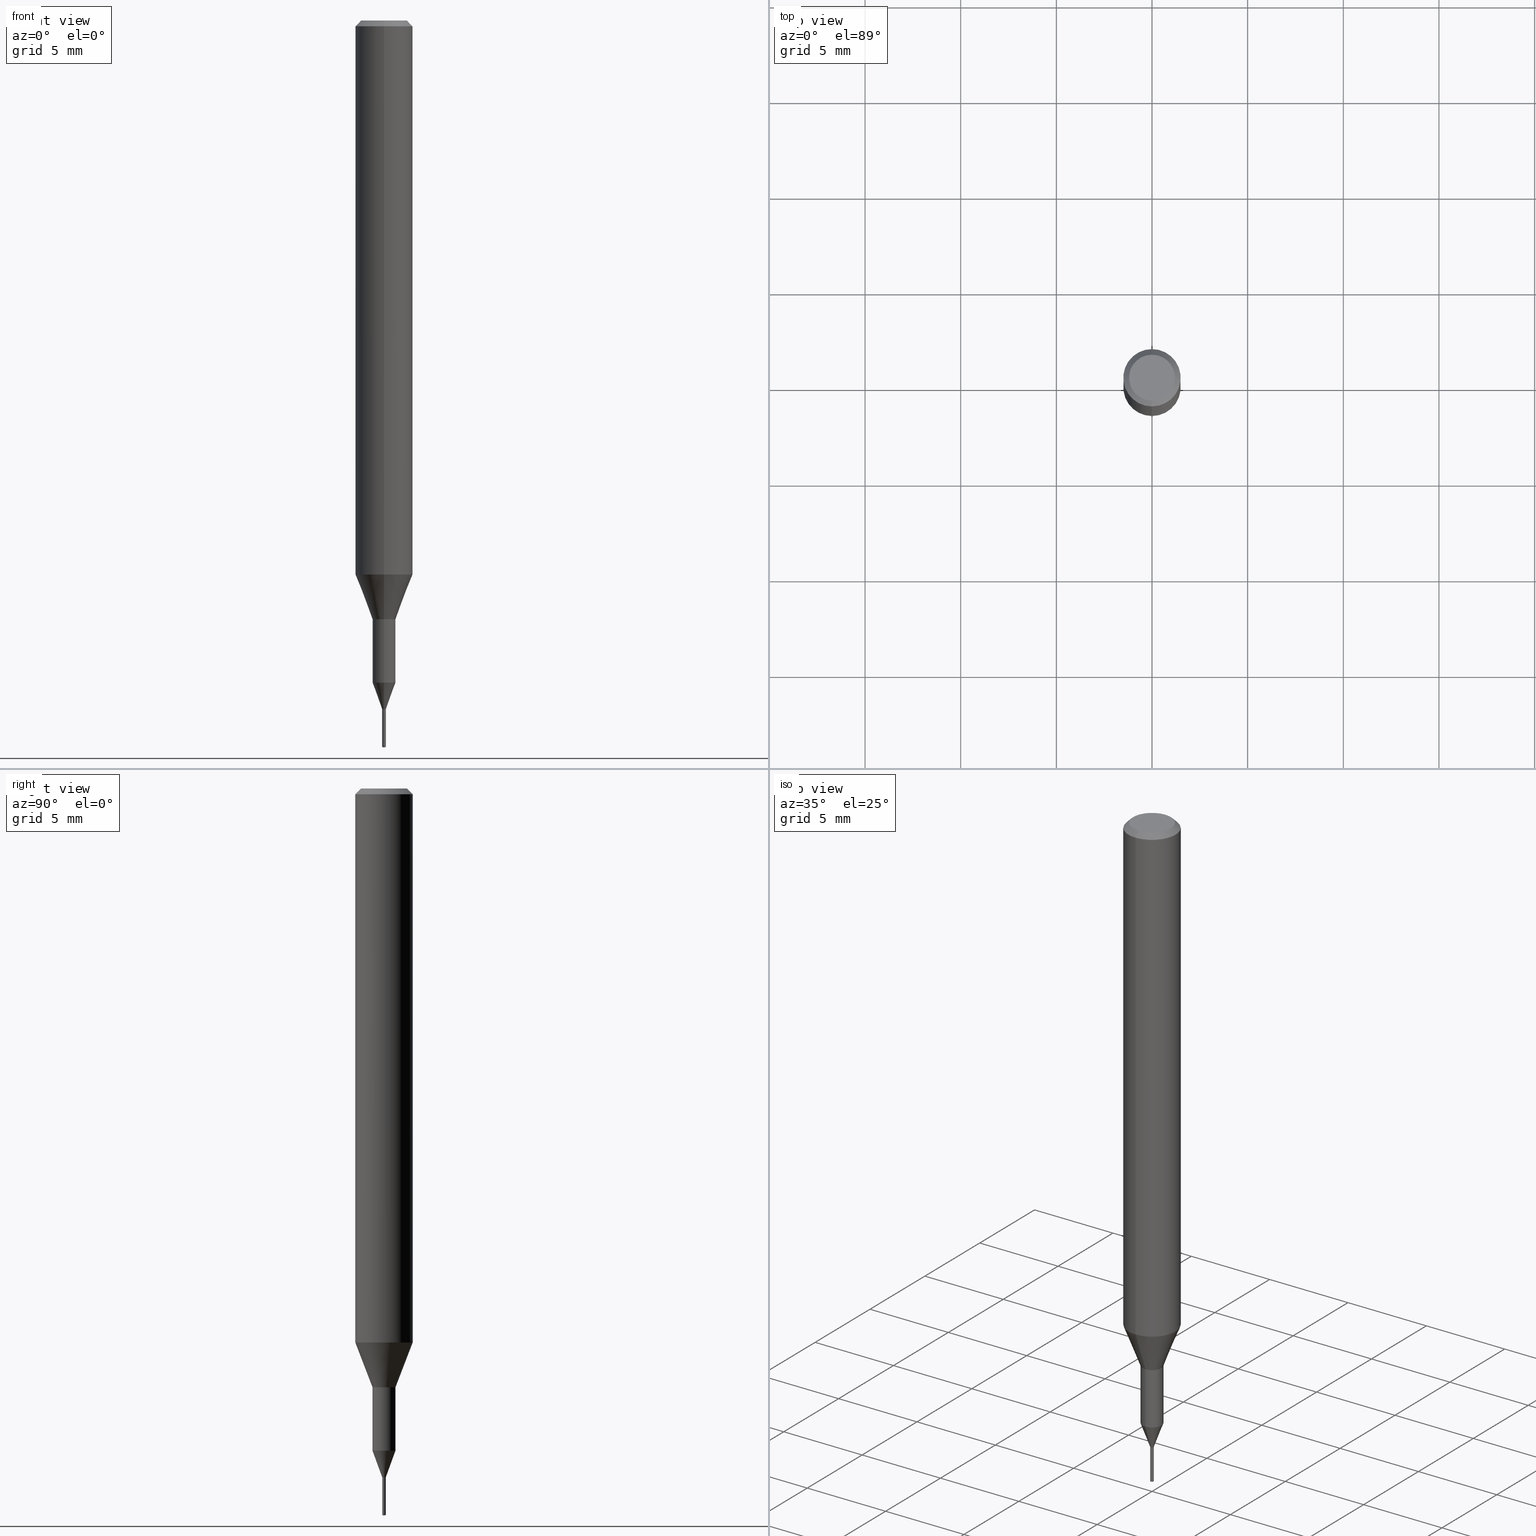
[diagram: canonical four-view strip — front | top / right | iso, engineering-drawing reading convention]
A machine part, canonical four-view strip (front | top / right | iso — engineering-drawing reading convention). The complete STEP part file that produces these views, byte-faithful:
ISO-10303-21;
HEADER;
FILE_DESCRIPTION(('no description'),'unknown implementation level');
FILE_NAME('C-UMD2019-020-Huellk.stp','  ',('CIMSOURCE GmbH'),('CADClick - KiM GmbH - www.kimweb.de'),'unknown preprocess','ACIS','unknown authorization');
FILE_SCHEMA(('automotive_design'));
ENDSEC;
DATA;
#1=MECHANICAL_DESIGN_GEOMETRIC_PRESENTATION_REPRESENTATION(' ',(#14,#15,#16,#17,#18,#19,#20,#21,#22,#23,#24,#25,#26,#27,#28,#29,#30,#31,#32,#33,#34,#35,#36,#37,#38,#39,#40,#41,#42,#43,#44,#45,#46,#47,#48,#49,#50,#51,#52,#53,#54,#55,#56,#57,#58,#59,#60,#61,#62,#63,#64,#65,#66,#67,#68,#69,#70,#71,#72,#73,#74,#75,#76,#77,#78,#79,#80,#81,#82,#83,#84,#85,#86,#87,#88,#89,#90,#91,#92),#10);
#2=PRODUCT_DEFINITION_CONTEXT('',#93,'design');
#3=APPLICATION_PROTOCOL_DEFINITION('INTERNATIONAL STANDARD','automotive_design',1994,#93);
#4=PRODUCT_CATEGORY_RELATIONSHIP('NONE','NONE',#94,#95);
#5=SHAPE_DEFINITION_REPRESENTATION(#96,#97);
#6=PRODUCT_DEFINITION_CONTEXT('',#98,'design');
#7=APPLICATION_PROTOCOL_DEFINITION('INTERNATIONAL STANDARD','automotive_design',1994,#98);
#8=PRODUCT_CATEGORY_RELATIONSHIP('NONE','NONE',#99,#100);
#9=SHAPE_DEFINITION_REPRESENTATION(#101,#102);
#10= (GEOMETRIC_REPRESENTATION_CONTEXT(3)GLOBAL_UNCERTAINTY_ASSIGNED_CONTEXT((#105))GLOBAL_UNIT_ASSIGNED_CONTEXT((#107,#108,#109))REPRESENTATION_CONTEXT('NONE','WORKSPACE'));
#14=STYLED_ITEM('',(#111),#112);
#15=STYLED_ITEM('',(#113),#114);
#16=STYLED_ITEM('',(#115),#116);
#17=STYLED_ITEM('',(#117),#118);
#18=STYLED_ITEM('',(#119),#120);
#19=STYLED_ITEM('',(#121),#122);
#20=STYLED_ITEM('',(#123),#124);
#21=STYLED_ITEM('',(#125),#126);
#22=STYLED_ITEM('',(#127),#128);
#23=STYLED_ITEM('',(#129),#130);
#24=STYLED_ITEM('',(#131),#132);
#25=STYLED_ITEM('',(#133),#134);
#26=STYLED_ITEM('',(#135),#136);
#27=STYLED_ITEM('',(#137),#138);
#28=STYLED_ITEM('',(#139),#140);
#29=STYLED_ITEM('',(#141),#142);
#30=STYLED_ITEM('',(#143),#144);
#31=STYLED_ITEM('',(#145),#146);
#32=STYLED_ITEM('',(#147),#148);
#33=STYLED_ITEM('',(#149),#150);
#34=STYLED_ITEM('',(#151),#152);
#35=STYLED_ITEM('',(#153),#154);
#36=STYLED_ITEM('',(#155),#156);
#37=STYLED_ITEM('',(#157),#158);
#38=STYLED_ITEM('',(#159),#160);
#39=STYLED_ITEM('',(#161),#162);
#40=STYLED_ITEM('',(#163),#164);
#41=STYLED_ITEM('',(#165),#166);
#42=STYLED_ITEM('',(#167),#168);
#43=STYLED_ITEM('',(#169),#170);
#44=STYLED_ITEM('',(#171),#172);
#45=STYLED_ITEM('',(#173),#174);
#46=STYLED_ITEM('',(#175),#176);
#47=STYLED_ITEM('',(#177),#178);
#48=STYLED_ITEM('',(#179),#180);
#49=STYLED_ITEM('',(#181),#182);
#50=STYLED_ITEM('',(#183),#184);
#51=STYLED_ITEM('',(#185),#186);
#52=STYLED_ITEM('',(#187),#188);
#53=STYLED_ITEM('',(#189),#190);
#54=STYLED_ITEM('',(#191),#192);
#55=STYLED_ITEM('',(#193),#194);
#56=STYLED_ITEM('',(#195),#196);
#57=STYLED_ITEM('',(#197),#198);
#58=STYLED_ITEM('',(#199),#200);
#59=STYLED_ITEM('',(#201),#202);
#60=STYLED_ITEM('',(#203),#204);
#61=STYLED_ITEM('',(#205),#206);
#62=STYLED_ITEM('',(#207),#208);
#63=STYLED_ITEM('',(#209),#210);
#64=STYLED_ITEM('',(#211),#212);
#65=STYLED_ITEM('',(#213),#214);
#66=STYLED_ITEM('',(#215),#216);
#67=STYLED_ITEM('',(#217),#218);
#68=STYLED_ITEM('',(#219),#220);
#69=STYLED_ITEM('',(#221),#222);
#70=STYLED_ITEM('',(#223),#224);
#71=STYLED_ITEM('',(#225),#226);
#72=STYLED_ITEM('',(#227),#228);
#73=STYLED_ITEM('',(#229),#230);
#74=STYLED_ITEM('',(#231),#232);
#75=STYLED_ITEM('',(#233),#234);
#76=STYLED_ITEM('',(#235),#236);
#77=STYLED_ITEM('',(#237),#238);
#78=STYLED_ITEM('',(#239),#240);
#79=STYLED_ITEM('',(#241),#242);
#80=STYLED_ITEM('',(#243),#244);
#81=STYLED_ITEM('',(#245),#246);
#82=STYLED_ITEM('',(#247),#248);
#83=STYLED_ITEM('',(#249),#250);
#84=STYLED_ITEM('',(#251),#252);
#85=STYLED_ITEM('',(#253),#254);
#86=STYLED_ITEM('',(#255),#256);
#87=STYLED_ITEM('',(#257),#258);
#88=STYLED_ITEM('',(#259),#260);
#89=STYLED_ITEM('',(#261),#262);
#90=STYLED_ITEM('',(#263),#264);
#91=STYLED_ITEM('',(#265),#266);
#92=STYLED_ITEM('',(#267),#268);
#93=APPLICATION_CONTEXT(' ');
#94=PRODUCT_CATEGORY('part','NONE');
#95=PRODUCT_RELATED_PRODUCT_CATEGORY('detail',' ',(#269));
#96=PRODUCT_DEFINITION_SHAPE('NONE','NONE',#270);
#97=ADVANCED_BREP_SHAPE_REPRESENTATION('1',(#182,#271),#10);
#98=APPLICATION_CONTEXT(' ');
#99=PRODUCT_CATEGORY('part','NONE');
#100=PRODUCT_RELATED_PRODUCT_CATEGORY('detail',' ',(#272));
#101=PRODUCT_DEFINITION_SHAPE('NONE','NONE',#273);
#102=ADVANCED_BREP_SHAPE_REPRESENTATION('2',(#194,#274),#10);
#105=UNCERTAINTY_MEASURE_WITH_UNIT(LENGTH_MEASURE(1.0E-006),#107,'','');
#107= (CONVERSION_BASED_UNIT('MILLIMETRE',#277)LENGTH_UNIT()NAMED_UNIT(#280));
#108= (NAMED_UNIT(#282)PLANE_ANGLE_UNIT()SI_UNIT($,.RADIAN.));
#109= (NAMED_UNIT(#282)SOLID_ANGLE_UNIT()SI_UNIT($,.STERADIAN.));
#111=PRESENTATION_STYLE_ASSIGNMENT((#288));
#112=EDGE_CURVE('',#198,#206,#289,.T.);
#113=PRESENTATION_STYLE_ASSIGNMENT((#290));
#114=EDGE_CURVE('',#156,#158,#291,.T.);
#115=PRESENTATION_STYLE_ASSIGNMENT((#292));
#116=EDGE_CURVE('',#264,#122,#293,.T.);
#117=PRESENTATION_STYLE_ASSIGNMENT((#294));
#118=VERTEX_POINT('',#295);
#119=PRESENTATION_STYLE_ASSIGNMENT((#296));
#120=EDGE_CURVE('',#256,#178,#297,.T.);
#121=PRESENTATION_STYLE_ASSIGNMENT((#298));
#122=VERTEX_POINT('',#299);
#123=PRESENTATION_STYLE_ASSIGNMENT((#300));
#124=EDGE_CURVE('',#156,#126,#301,.T.);
#125=PRESENTATION_STYLE_ASSIGNMENT((#302));
#126=VERTEX_POINT('',#303);
#127=PRESENTATION_STYLE_ASSIGNMENT((#304));
#128=EDGE_CURVE('',#148,#136,#305,.T.);
#129=PRESENTATION_STYLE_ASSIGNMENT((#306));
#130=VERTEX_POINT('',#307);
#131=PRESENTATION_STYLE_ASSIGNMENT((#308));
#132=EDGE_CURVE('',#142,#130,#309,.T.);
#133=PRESENTATION_STYLE_ASSIGNMENT((#310));
#134=ADVANCED_FACE('',(#311,#312),#313,.T.);
#135=PRESENTATION_STYLE_ASSIGNMENT((#314));
#136=VERTEX_POINT('',#315);
#137=PRESENTATION_STYLE_ASSIGNMENT((#316));
#138=EDGE_CURVE('',#264,#118,#317,.T.);
#139=PRESENTATION_STYLE_ASSIGNMENT((#318));
#140=ADVANCED_FACE('',(#319),#320,.T.);
#141=PRESENTATION_STYLE_ASSIGNMENT((#321));
#142=VERTEX_POINT('',#322);
#143=PRESENTATION_STYLE_ASSIGNMENT((#323));
#144=EDGE_CURVE('',#178,#198,#324,.T.);
#145=PRESENTATION_STYLE_ASSIGNMENT((#325));
#146=ADVANCED_FACE('',(#326),#327,.T.);
#147=PRESENTATION_STYLE_ASSIGNMENT((#328));
#148=VERTEX_POINT('',#329);
#149=PRESENTATION_STYLE_ASSIGNMENT((#330));
#150=ADVANCED_FACE('',(#331),#332,.T.);
#151=PRESENTATION_STYLE_ASSIGNMENT((#333));
#152=EDGE_CURVE('',#238,#122,#334,.T.);
#153=PRESENTATION_STYLE_ASSIGNMENT((#335));
#154=VERTEX_POINT('',#336);
#155=PRESENTATION_STYLE_ASSIGNMENT((#337));
#156=VERTEX_POINT('',#338);
#157=PRESENTATION_STYLE_ASSIGNMENT((#339));
#158=VERTEX_POINT('',#340);
#159=PRESENTATION_STYLE_ASSIGNMENT((#341));
#160=EDGE_CURVE('',#122,#238,#342,.T.);
#161=PRESENTATION_STYLE_ASSIGNMENT((#343));
#162=ADVANCED_FACE('',(#344),#345,.T.);
#163=PRESENTATION_STYLE_ASSIGNMENT((#346));
#164=ADVANCED_FACE('',(#347),#348,.T.);
#165=PRESENTATION_STYLE_ASSIGNMENT((#349));
#166=EDGE_CURVE('',#260,#214,#350,.T.);
#167=PRESENTATION_STYLE_ASSIGNMENT((#351));
#168=ADVANCED_FACE('',(#352),#353,.T.);
#169=PRESENTATION_STYLE_ASSIGNMENT((#354));
#170=EDGE_CURVE('',#178,#256,#355,.T.);
#171=PRESENTATION_STYLE_ASSIGNMENT((#356));
#172=EDGE_CURVE('',#224,#142,#357,.T.);
#173=PRESENTATION_STYLE_ASSIGNMENT((#358));
#174=EDGE_CURVE('',#154,#158,#359,.T.);
#175=PRESENTATION_STYLE_ASSIGNMENT((#360));
#176=ADVANCED_FACE('',(#361),#362,.T.);
#177=PRESENTATION_STYLE_ASSIGNMENT((#363));
#178=VERTEX_POINT('',#364);
#179=PRESENTATION_STYLE_ASSIGNMENT((#365));
#180=EDGE_CURVE('',#130,#224,#366,.T.);
#181=PRESENTATION_STYLE_ASSIGNMENT((#367));
#182=MANIFOLD_SOLID_BREP('1',#368);
#183=PRESENTATION_STYLE_ASSIGNMENT((#369));
#184=EDGE_CURVE('',#136,#214,#370,.T.);
#185=PRESENTATION_STYLE_ASSIGNMENT((#371));
#186=ADVANCED_FACE('',(#372),#373,.T.);
#187=PRESENTATION_STYLE_ASSIGNMENT((#374));
#188=EDGE_CURVE('',#214,#260,#375,.T.);
#189=PRESENTATION_STYLE_ASSIGNMENT((#376));
#190=ADVANCED_FACE('',(#377),#378,.T.);
#191=PRESENTATION_STYLE_ASSIGNMENT((#379));
#192=ADVANCED_FACE('',(#380),#381,.T.);
#193=PRESENTATION_STYLE_ASSIGNMENT((#382));
#194=MANIFOLD_SOLID_BREP('2',#383);
#195=PRESENTATION_STYLE_ASSIGNMENT((#384));
#196=EDGE_CURVE('',#130,#178,#385,.T.);
#197=PRESENTATION_STYLE_ASSIGNMENT((#386));
#198=VERTEX_POINT('',#387);
#199=PRESENTATION_STYLE_ASSIGNMENT((#388));
#200=EDGE_CURVE('',#230,#154,#389,.T.);
#201=PRESENTATION_STYLE_ASSIGNMENT((#390));
#202=EDGE_CURVE('',#154,#126,#391,.T.);
#203=PRESENTATION_STYLE_ASSIGNMENT((#392));
#204=EDGE_CURVE('',#214,#238,#393,.T.);
#205=PRESENTATION_STYLE_ASSIGNMENT((#394));
#206=VERTEX_POINT('',#395);
#207=PRESENTATION_STYLE_ASSIGNMENT((#396));
#208=EDGE_CURVE('',#230,#236,#397,.T.);
#209=PRESENTATION_STYLE_ASSIGNMENT((#398));
#210=EDGE_CURVE('',#260,#148,#399,.T.);
#211=PRESENTATION_STYLE_ASSIGNMENT((#400));
#212=ADVANCED_FACE('',(#401),#402,.T.);
#213=PRESENTATION_STYLE_ASSIGNMENT((#403));
#214=VERTEX_POINT('',#404);
#215=PRESENTATION_STYLE_ASSIGNMENT((#405));
#216=EDGE_CURVE('',#122,#260,#406,.T.);
#217=PRESENTATION_STYLE_ASSIGNMENT((#407));
#218=EDGE_CURVE('',#236,#230,#408,.T.);
#219=PRESENTATION_STYLE_ASSIGNMENT((#409));
#220=EDGE_CURVE('',#206,#256,#410,.T.);
#221=PRESENTATION_STYLE_ASSIGNMENT((#411));
#222=ADVANCED_FACE('',(#412),#413,.T.);
#223=PRESENTATION_STYLE_ASSIGNMENT((#414));
#224=VERTEX_POINT('',#415);
#225=PRESENTATION_STYLE_ASSIGNMENT((#416));
#226=EDGE_CURVE('',#238,#118,#417,.T.);
#227=PRESENTATION_STYLE_ASSIGNMENT((#418));
#228=EDGE_CURVE('',#256,#224,#419,.T.);
#229=PRESENTATION_STYLE_ASSIGNMENT((#420));
#230=VERTEX_POINT('',#421);
#231=PRESENTATION_STYLE_ASSIGNMENT((#422));
#232=ADVANCED_FACE('',(#423),#424,.T.);
#233=PRESENTATION_STYLE_ASSIGNMENT((#425));
#234=ADVANCED_FACE('',(#426),#427,.T.);
#235=PRESENTATION_STYLE_ASSIGNMENT((#428));
#236=VERTEX_POINT('',#429);
#237=PRESENTATION_STYLE_ASSIGNMENT((#430));
#238=VERTEX_POINT('',#431);
#239=PRESENTATION_STYLE_ASSIGNMENT((#432));
#240=EDGE_CURVE('',#158,#154,#433,.T.);
#241=PRESENTATION_STYLE_ASSIGNMENT((#434));
#242=ADVANCED_FACE('',(#435),#436,.T.);
#243=PRESENTATION_STYLE_ASSIGNMENT((#437));
#244=ADVANCED_FACE('',(#438),#439,.T.);
#245=PRESENTATION_STYLE_ASSIGNMENT((#440));
#246=ADVANCED_FACE('',(#441),#442,.T.);
#247=PRESENTATION_STYLE_ASSIGNMENT((#443));
#248=ADVANCED_FACE('',(#444),#445,.T.);
#249=PRESENTATION_STYLE_ASSIGNMENT((#446));
#250=EDGE_CURVE('',#224,#130,#447,.T.);
#251=PRESENTATION_STYLE_ASSIGNMENT((#448));
#252=EDGE_CURVE('',#206,#198,#449,.T.);
#253=PRESENTATION_STYLE_ASSIGNMENT((#450));
#254=EDGE_CURVE('',#126,#156,#451,.T.);
#255=PRESENTATION_STYLE_ASSIGNMENT((#452));
#256=VERTEX_POINT('',#453);
#257=PRESENTATION_STYLE_ASSIGNMENT((#454));
#258=ADVANCED_FACE('',(#455),#456,.T.);
#259=PRESENTATION_STYLE_ASSIGNMENT((#457));
#260=VERTEX_POINT('',#458);
#261=PRESENTATION_STYLE_ASSIGNMENT((#459));
#262=EDGE_CURVE('',#158,#236,#460,.T.);
#263=PRESENTATION_STYLE_ASSIGNMENT((#461));
#264=VERTEX_POINT('',#462);
#265=PRESENTATION_STYLE_ASSIGNMENT((#463));
#266=EDGE_CURVE('',#136,#148,#464,.T.);
#267=PRESENTATION_STYLE_ASSIGNMENT((#465));
#268=EDGE_CURVE('',#118,#264,#466,.T.);
#269=PRODUCT('1','1','PART-1-DESC',(#467));
#270=PRODUCT_DEFINITION('NONE','NONE',#468,#2);
#271=AXIS2_PLACEMENT_3D('',#469,#470,#471);
#272=PRODUCT('2','2','PART-2-DESC',(#472));
#273=PRODUCT_DEFINITION('NONE','NONE',#473,#6);
#274=AXIS2_PLACEMENT_3D('',#474,#475,#476);
#277=LENGTH_MEASURE_WITH_UNIT(LENGTH_MEASURE(1.0),#477);
#280=DIMENSIONAL_EXPONENTS(1.0,0.0,0.0,0.0,0.0,0.0,0.0);
#282=DIMENSIONAL_EXPONENTS(0.0,0.0,0.0,0.0,0.0,0.0,0.0);
#288=CURVE_STYLE('',#478,POSITIVE_LENGTH_MEASURE(1.0E-006),#479);
#289=CIRCLE('',#480,0.096036409516943);
#290=CURVE_STYLE('',#481,POSITIVE_LENGTH_MEASURE(1.0E-006),#482);
#291=LINE('',#483,#484);
#292=CURVE_STYLE('',#485,POSITIVE_LENGTH_MEASURE(1.0E-006),#486);
#293=LINE('',#487,#488);
#294=POINT_STYLE(' ',#489,POSITIVE_LENGTH_MEASURE(1.0E-006),#490);
#295=CARTESIAN_POINT('',(1.46952762458685E-016,-1.2,0.0));
#296=CURVE_STYLE('',#491,POSITIVE_LENGTH_MEASURE(1.0E-006),#492);
#297=CIRCLE('',#493,0.095);
#298=POINT_STYLE(' ',#494,POSITIVE_LENGTH_MEASURE(1.0E-006),#495);
#299=CARTESIAN_POINT('',(0.0,1.5,-0.300000000000001));
#300=CURVE_STYLE('',#496,POSITIVE_LENGTH_MEASURE(1.0E-006),#497);
#301=CIRCLE('',#498,0.0950364059120403);
#302=POINT_STYLE(' ',#499,POSITIVE_LENGTH_MEASURE(1.0E-006),#500);
#303=CARTESIAN_POINT('',(0.0,0.0950364059120403,-35.9999));
#304=CURVE_STYLE('',#501,POSITIVE_LENGTH_MEASURE(1.0E-006),#502);
#305=CIRCLE('',#503,0.6);
#306=POINT_STYLE(' ',#504,POSITIVE_LENGTH_MEASURE(1.0E-006),#505);
#307=CARTESIAN_POINT('',(0.095,1.16337603613126E-017,-37.97454483));
#308=CURVE_STYLE('',#506,POSITIVE_LENGTH_MEASURE(1.0E-006),#507);
#309=LINE('',#508,#509);
#310=SURFACE_STYLE_USAGE(.BOTH.,#510);
#311=FACE_BOUND('',#511,.T.);
#312=FACE_OUTER_BOUND('',#512,.T.);
#313=PLANE('',#513);
#314=POINT_STYLE(' ',#514,POSITIVE_LENGTH_MEASURE(1.0E-006),#515);
#315=CARTESIAN_POINT('',(7.34763812293426E-017,-0.6,-31.3));
#316=CURVE_STYLE('',#516,POSITIVE_LENGTH_MEASURE(1.0E-006),#517);
#317=CIRCLE('',#518,1.2);
#318=SURFACE_STYLE_USAGE(.BOTH.,#519);
#319=FACE_OUTER_BOUND('',#520,.T.);
#320=CONICAL_SURFACE('',#521,0.0475,1.30899697121863);
#321=POINT_STYLE(' ',#522,POSITIVE_LENGTH_MEASURE(1.0E-006),#523);
#322=CARTESIAN_POINT('',(0.0,0.0,-38.0));
#323=CURVE_STYLE('',#524,POSITIVE_LENGTH_MEASURE(1.0E-006),#525);
#324=LINE('',#526,#527);
#325=SURFACE_STYLE_USAGE(.BOTH.,#528);
#326=FACE_OUTER_BOUND('',#529,.T.);
#327=CYLINDRICAL_SURFACE('',#530,0.095);
#328=POINT_STYLE(' ',#531,POSITIVE_LENGTH_MEASURE(1.0E-006),#532);
#329=CARTESIAN_POINT('',(0.0,0.6,-31.3));
#330=SURFACE_STYLE_USAGE(.BOTH.,#533);
#331=FACE_OUTER_BOUND('',#534,.T.);
#332=CYLINDRICAL_SURFACE('',#535,0.59995);
#333=CURVE_STYLE('',#536,POSITIVE_LENGTH_MEASURE(1.0E-006),#537);
#334=CIRCLE('',#538,1.5);
#335=POINT_STYLE(' ',#539,POSITIVE_LENGTH_MEASURE(1.0E-006),#540);
#336=CARTESIAN_POINT('',(0.0,0.59995,-34.613));
#337=POINT_STYLE(' ',#541,POSITIVE_LENGTH_MEASURE(1.0E-006),#542);
#338=CARTESIAN_POINT('',(1.16382186524327E-017,-0.0950364059120403,-35.9999));
#339=POINT_STYLE(' ',#543,POSITIVE_LENGTH_MEASURE(1.0E-006),#544);
#340=CARTESIAN_POINT('',(7.34702581975735E-017,-0.59995,-34.613));
#341=CURVE_STYLE('',#545,POSITIVE_LENGTH_MEASURE(1.0E-006),#546);
#342=CIRCLE('',#547,1.5);
#343=SURFACE_STYLE_USAGE(.BOTH.,#548);
#344=FACE_OUTER_BOUND('',#549,.T.);
#345=PLANE('',#550);
#346=SURFACE_STYLE_USAGE(.BOTH.,#551);
#347=FACE_OUTER_BOUND('',#552,.T.);
#348=CYLINDRICAL_SURFACE('',#553,1.5);
#349=CURVE_STYLE('',#554,POSITIVE_LENGTH_MEASURE(1.0E-006),#555);
#350=CIRCLE('',#556,1.5);
#351=SURFACE_STYLE_USAGE(.BOTH.,#557);
#352=FACE_OUTER_BOUND('',#558,.T.);
#353=CONICAL_SURFACE('',#559,1.05,0.366459241971866);
#354=CURVE_STYLE('',#560,POSITIVE_LENGTH_MEASURE(1.0E-006),#561);
#355=CIRCLE('',#562,0.095);
#356=CURVE_STYLE('',#563,POSITIVE_LENGTH_MEASURE(1.0E-006),#564);
#357=LINE('',#565,#566);
#358=CURVE_STYLE('',#567,POSITIVE_LENGTH_MEASURE(1.0E-006),#568);
#359=CIRCLE('',#569,0.59995);
#360=SURFACE_STYLE_USAGE(.BOTH.,#570);
#361=FACE_OUTER_BOUND('',#571,.T.);
#362=CONICAL_SURFACE('',#572,1.05,0.366459241971866);
#363=POINT_STYLE(' ',#573,POSITIVE_LENGTH_MEASURE(1.0E-006),#574);
#364=CARTESIAN_POINT('',(0.095,1.16337603613126E-017,-36.0));
#365=CURVE_STYLE('',#575,POSITIVE_LENGTH_MEASURE(1.0E-006),#576);
#366=CIRCLE('',#577,0.095);
#367=SURFACE_STYLE_USAGE(.BOTH.,#578);
#368=CLOSED_SHELL('',(#232,#212,#168,#234,#246,#162,#186,#164,#176,#134,#150,#222,#248));
#369=CURVE_STYLE('',#579,POSITIVE_LENGTH_MEASURE(1.0E-006),#580);
#370=LINE('',#581,#582);
#371=SURFACE_STYLE_USAGE(.BOTH.,#583);
#372=FACE_OUTER_BOUND('',#584,.T.);
#373=CONICAL_SURFACE('',#585,1.35,0.785398163397447);
#374=CURVE_STYLE('',#586,POSITIVE_LENGTH_MEASURE(1.0E-006),#587);
#375=CIRCLE('',#588,1.5);
#376=SURFACE_STYLE_USAGE(.BOTH.,#589);
#377=FACE_OUTER_BOUND('',#590,.T.);
#378=CONICAL_SURFACE('',#591,0.0955182047584715,1.47460713138279);
#379=SURFACE_STYLE_USAGE(.BOTH.,#592);
#380=FACE_OUTER_BOUND('',#593,.T.);
#381=CONICAL_SURFACE('',#594,0.0475,1.30899697121863);
#382=SURFACE_STYLE_USAGE(.BOTH.,#595);
#383=CLOSED_SHELL('',(#140,#242,#190,#258,#244,#146,#192));
#384=CURVE_STYLE('',#596,POSITIVE_LENGTH_MEASURE(1.0E-006),#597);
#385=LINE('',#598,#599);
#386=POINT_STYLE(' ',#600,POSITIVE_LENGTH_MEASURE(1.0E-006),#601);
#387=CARTESIAN_POINT('',(0.096036409516943,1.17606797292736E-017,-35.9999));
#388=CURVE_STYLE('',#602,POSITIVE_LENGTH_MEASURE(1.0E-006),#603);
#389=LINE('',#604,#605);
#390=CURVE_STYLE('',#606,POSITIVE_LENGTH_MEASURE(1.0E-006),#607);
#391=LINE('',#608,#609);
#392=CURVE_STYLE('',#610,POSITIVE_LENGTH_MEASURE(1.0E-006),#611);
#393=LINE('',#612,#613);
#394=POINT_STYLE(' ',#614,POSITIVE_LENGTH_MEASURE(1.0E-006),#615);
#395=CARTESIAN_POINT('',(-0.096036409516943,0.0,-35.9999));
#396=CURVE_STYLE('',#616,POSITIVE_LENGTH_MEASURE(1.0E-006),#617);
#397=CIRCLE('',#618,0.59995);
#398=CURVE_STYLE('',#619,POSITIVE_LENGTH_MEASURE(1.0E-006),#620);
#399=LINE('',#621,#622);
#400=SURFACE_STYLE_USAGE(.BOTH.,#623);
#401=FACE_OUTER_BOUND('',#624,.T.);
#402=CYLINDRICAL_SURFACE('',#625,0.59995);
#403=POINT_STYLE(' ',#626,POSITIVE_LENGTH_MEASURE(1.0E-006),#627);
#404=CARTESIAN_POINT('',(1.83690953073357E-016,-1.5,-28.955));
#405=CURVE_STYLE('',#628,POSITIVE_LENGTH_MEASURE(1.0E-006),#629);
#406=LINE('',#630,#631);
#407=CURVE_STYLE('',#632,POSITIVE_LENGTH_MEASURE(1.0E-006),#633);
#408=CIRCLE('',#634,0.59995);
#409=CURVE_STYLE('',#635,POSITIVE_LENGTH_MEASURE(1.0E-006),#636);
#410=LINE('',#637,#638);
#411=SURFACE_STYLE_USAGE(.BOTH.,#639);
#412=FACE_OUTER_BOUND('',#640,.T.);
#413=CONICAL_SURFACE('',#641,0.34749320295602,0.349144336591196);
#414=POINT_STYLE(' ',#642,POSITIVE_LENGTH_MEASURE(1.0E-006),#643);
#415=CARTESIAN_POINT('',(-0.095,0.0,-37.97454483));
#416=CURVE_STYLE('',#644,POSITIVE_LENGTH_MEASURE(1.0E-006),#645);
#417=LINE('',#646,#647);
#418=CURVE_STYLE('',#648,POSITIVE_LENGTH_MEASURE(1.0E-006),#649);
#419=LINE('',#650,#651);
#420=POINT_STYLE(' ',#652,POSITIVE_LENGTH_MEASURE(1.0E-006),#653);
#421=CARTESIAN_POINT('',(0.0,0.59995,-31.3));
#422=SURFACE_STYLE_USAGE(.BOTH.,#654);
#423=FACE_OUTER_BOUND('',#655,.T.);
#424=CONICAL_SURFACE('',#656,0.34749320295602,0.349144336591196);
#425=SURFACE_STYLE_USAGE(.BOTH.,#657);
#426=FACE_OUTER_BOUND('',#658,.T.);
#427=CYLINDRICAL_SURFACE('',#659,1.5);
#428=POINT_STYLE(' ',#660,POSITIVE_LENGTH_MEASURE(1.0E-006),#661);
#429=CARTESIAN_POINT('',(7.34702581975735E-017,-0.59995,-31.3));
#430=POINT_STYLE(' ',#662,POSITIVE_LENGTH_MEASURE(1.0E-006),#663);
#431=CARTESIAN_POINT('',(1.83690953073357E-016,-1.5,-0.300000000000001));
#432=CURVE_STYLE('',#664,POSITIVE_LENGTH_MEASURE(1.0E-006),#665);
#433=CIRCLE('',#666,0.59995);
#434=SURFACE_STYLE_USAGE(.BOTH.,#667);
#435=FACE_OUTER_BOUND('',#668,.T.);
#436=CYLINDRICAL_SURFACE('',#669,0.095);
#437=SURFACE_STYLE_USAGE(.BOTH.,#670);
#438=FACE_OUTER_BOUND('',#671,.T.);
#439=CONICAL_SURFACE('',#672,0.0955182047584715,1.47460713138279);
#440=SURFACE_STYLE_USAGE(.BOTH.,#673);
#441=FACE_OUTER_BOUND('',#674,.T.);
#442=CONICAL_SURFACE('',#675,1.35,0.785398163397447);
#443=SURFACE_STYLE_USAGE(.BOTH.,#676);
#444=FACE_OUTER_BOUND('',#677,.T.);
#445=PLANE('',#678);
#446=CURVE_STYLE('',#679,POSITIVE_LENGTH_MEASURE(1.0E-006),#680);
#447=CIRCLE('',#681,0.095);
#448=CURVE_STYLE('',#682,POSITIVE_LENGTH_MEASURE(1.0E-006),#683);
#449=CIRCLE('',#684,0.096036409516943);
#450=CURVE_STYLE('',#685,POSITIVE_LENGTH_MEASURE(1.0E-006),#686);
#451=CIRCLE('',#687,0.0950364059120403);
#452=POINT_STYLE(' ',#688,POSITIVE_LENGTH_MEASURE(1.0E-006),#689);
#453=CARTESIAN_POINT('',(-0.095,0.0,-36.0));
#454=SURFACE_STYLE_USAGE(.BOTH.,#690);
#455=FACE_OUTER_BOUND('',#691,.T.);
#456=PLANE('',#692);
#457=POINT_STYLE(' ',#693,POSITIVE_LENGTH_MEASURE(1.0E-006),#694);
#458=CARTESIAN_POINT('',(0.0,1.5,-28.955));
#459=CURVE_STYLE('',#695,POSITIVE_LENGTH_MEASURE(1.0E-006),#696);
#460=LINE('',#697,#698);
#461=POINT_STYLE(' ',#699,POSITIVE_LENGTH_MEASURE(1.0E-006),#700);
#462=CARTESIAN_POINT('',(0.0,1.2,0.0));
#463=CURVE_STYLE('',#701,POSITIVE_LENGTH_MEASURE(1.0E-006),#702);
#464=CIRCLE('',#703,0.6);
#465=CURVE_STYLE('',#704,POSITIVE_LENGTH_MEASURE(1.0E-006),#705);
#466=CIRCLE('',#706,1.2);
#467=PRODUCT_CONTEXT('',#93,'mechanical');
#468=PRODUCT_DEFINITION_FORMATION_WITH_SPECIFIED_SOURCE(' ','NONE',#269,.NOT_KNOWN.);
#469=CARTESIAN_POINT('',(0.0,0.0,0.0));
#470=DIRECTION('',(0.0,0.0,1.0));
#471=DIRECTION('',(1.0,0.0,0.0));
#472=PRODUCT_CONTEXT('',#98,'mechanical');
#473=PRODUCT_DEFINITION_FORMATION_WITH_SPECIFIED_SOURCE(' ','NONE',#272,.NOT_KNOWN.);
#474=CARTESIAN_POINT('',(0.0,0.0,0.0));
#475=DIRECTION('',(0.0,0.0,1.0));
#476=DIRECTION('',(1.0,0.0,0.0));
#477= (NAMED_UNIT(#280)LENGTH_UNIT()SI_UNIT(.MILLI.,.METRE.));
#478=DRAUGHTING_PRE_DEFINED_CURVE_FONT('continuous');
#479=COLOUR_RGB('',0.800000011920929,0.800000011920929,0.800000011920929);
#480=AXIS2_PLACEMENT_3D('',#708,#709,#710);
#481=DRAUGHTING_PRE_DEFINED_CURVE_FONT('continuous');
#482=COLOUR_RGB('',0.498039215803146,0.498039215803146,0.498039215803146);
#483=CARTESIAN_POINT('',(4.25542384250031E-017,-0.34749320295602,-35.30645));
#484=VECTOR('',#711,1.0);
#485=DRAUGHTING_PRE_DEFINED_CURVE_FONT('continuous');
#486=COLOUR_RGB('',0.498039215803146,0.498039215803146,0.498039215803146);
#487=CARTESIAN_POINT('',(-1.65321857766021E-016,1.35,-0.149999999999999));
#488=VECTOR('',#712,1.0);
#489=PRE_DEFINED_MARKER('');
#490=COLOUR_RGB('',0.498039215803146,0.498039215803146,0.498039215803146);
#491=DRAUGHTING_PRE_DEFINED_CURVE_FONT('continuous');
#492=COLOUR_RGB('',0.800000011920929,0.800000011920929,0.800000011920929);
#493=AXIS2_PLACEMENT_3D('',#713,#714,#715);
#494=PRE_DEFINED_MARKER('');
#495=COLOUR_RGB('',0.498039215803146,0.498039215803146,0.498039215803146);
#496=DRAUGHTING_PRE_DEFINED_CURVE_FONT('continuous');
#497=COLOUR_RGB('',0.498039215803146,0.498039215803146,0.498039215803146);
#498=AXIS2_PLACEMENT_3D('',#716,#717,#718);
#499=PRE_DEFINED_MARKER('');
#500=COLOUR_RGB('',0.498039215803146,0.498039215803146,0.498039215803146);
#501=DRAUGHTING_PRE_DEFINED_CURVE_FONT('continuous');
#502=COLOUR_RGB('',0.498039215803146,0.498039215803146,0.498039215803146);
#503=AXIS2_PLACEMENT_3D('',#719,#720,#721);
#504=PRE_DEFINED_MARKER('');
#505=COLOUR_RGB('',0.800000011920929,0.800000011920929,0.800000011920929);
#506=DRAUGHTING_PRE_DEFINED_CURVE_FONT('continuous');
#507=COLOUR_RGB('',0.800000011920929,0.800000011920929,0.800000011920929);
#508=CARTESIAN_POINT('',(0.0475,5.81688018065629E-018,-37.987272415));
#509=VECTOR('',#722,1.0);
#510=SURFACE_SIDE_STYLE('',(#723));
#511=EDGE_LOOP('',(#724,#725));
#512=EDGE_LOOP('',(#726,#727));
#513=AXIS2_PLACEMENT_3D('',#728,#729,#730);
#514=PRE_DEFINED_MARKER('');
#515=COLOUR_RGB('',0.498039215803146,0.498039215803146,0.498039215803146);
#516=DRAUGHTING_PRE_DEFINED_CURVE_FONT('continuous');
#517=COLOUR_RGB('',0.498039215803146,0.498039215803146,0.498039215803146);
#518=AXIS2_PLACEMENT_3D('',#731,#732,#733);
#519=SURFACE_SIDE_STYLE('',(#734));
#520=EDGE_LOOP('',(#735,#736,#737));
#521=AXIS2_PLACEMENT_3D('',#738,#739,#740);
#522=PRE_DEFINED_MARKER('');
#523=COLOUR_RGB('',0.800000011920929,0.800000011920929,0.800000011920929);
#524=DRAUGHTING_PRE_DEFINED_CURVE_FONT('continuous');
#525=COLOUR_RGB('',0.800000011920929,0.800000011920929,0.800000011920929);
#526=CARTESIAN_POINT('',(0.0955182047584715,1.16972200452931E-017,-35.99995));
#527=VECTOR('',#741,1.0);
#528=SURFACE_SIDE_STYLE('',(#742));
#529=EDGE_LOOP('',(#743,#744,#745,#746));
#530=AXIS2_PLACEMENT_3D('',#747,#748,#749);
#531=PRE_DEFINED_MARKER('');
#532=COLOUR_RGB('',0.498039215803146,0.498039215803146,0.498039215803146);
#533=SURFACE_SIDE_STYLE('',(#750));
#534=EDGE_LOOP('',(#751,#752,#753,#754));
#535=AXIS2_PLACEMENT_3D('',#755,#756,#757);
#536=DRAUGHTING_PRE_DEFINED_CURVE_FONT('continuous');
#537=COLOUR_RGB('',0.498039215803146,0.498039215803146,0.498039215803146);
#538=AXIS2_PLACEMENT_3D('',#758,#759,#760);
#539=PRE_DEFINED_MARKER('');
#540=COLOUR_RGB('',0.498039215803146,0.498039215803146,0.498039215803146);
#541=PRE_DEFINED_MARKER('');
#542=COLOUR_RGB('',0.498039215803146,0.498039215803146,0.498039215803146);
#543=PRE_DEFINED_MARKER('');
#544=COLOUR_RGB('',0.498039215803146,0.498039215803146,0.498039215803146);
#545=DRAUGHTING_PRE_DEFINED_CURVE_FONT('continuous');
#546=COLOUR_RGB('',0.498039215803146,0.498039215803146,0.498039215803146);
#547=AXIS2_PLACEMENT_3D('',#761,#762,#763);
#548=SURFACE_SIDE_STYLE('',(#764));
#549=EDGE_LOOP('',(#765,#766));
#550=AXIS2_PLACEMENT_3D('',#767,#768,#769);
#551=SURFACE_SIDE_STYLE('',(#770));
#552=EDGE_LOOP('',(#771,#772,#773,#774));
#553=AXIS2_PLACEMENT_3D('',#775,#776,#777);
#554=DRAUGHTING_PRE_DEFINED_CURVE_FONT('continuous');
#555=COLOUR_RGB('',0.498039215803146,0.498039215803146,0.498039215803146);
#556=AXIS2_PLACEMENT_3D('',#778,#779,#780);
#557=SURFACE_SIDE_STYLE('',(#781));
#558=EDGE_LOOP('',(#782,#783,#784,#785));
#559=AXIS2_PLACEMENT_3D('',#786,#787,#788);
#560=DRAUGHTING_PRE_DEFINED_CURVE_FONT('continuous');
#561=COLOUR_RGB('',0.800000011920929,0.800000011920929,0.800000011920929);
#562=AXIS2_PLACEMENT_3D('',#789,#790,#791);
#563=DRAUGHTING_PRE_DEFINED_CURVE_FONT('continuous');
#564=COLOUR_RGB('',0.800000011920929,0.800000011920929,0.800000011920929);
#565=CARTESIAN_POINT('',(-0.0475,-5.81688018065629E-018,-37.987272415));
#566=VECTOR('',#792,1.0);
#567=DRAUGHTING_PRE_DEFINED_CURVE_FONT('continuous');
#568=COLOUR_RGB('',0.498039215803146,0.498039215803146,0.498039215803146);
#569=AXIS2_PLACEMENT_3D('',#793,#794,#795);
#570=SURFACE_SIDE_STYLE('',(#796));
#571=EDGE_LOOP('',(#797,#798,#799,#800));
#572=AXIS2_PLACEMENT_3D('',#801,#802,#803);
#573=PRE_DEFINED_MARKER('');
#574=COLOUR_RGB('',0.800000011920929,0.800000011920929,0.800000011920929);
#575=DRAUGHTING_PRE_DEFINED_CURVE_FONT('continuous');
#576=COLOUR_RGB('',0.800000011920929,0.800000011920929,0.800000011920929);
#577=AXIS2_PLACEMENT_3D('',#804,#805,#806);
#578=SURFACE_SIDE_STYLE('',(#807));
#579=DRAUGHTING_PRE_DEFINED_CURVE_FONT('continuous');
#580=COLOUR_RGB('',0.498039215803146,0.498039215803146,0.498039215803146);
#581=CARTESIAN_POINT('',(1.2858366715135E-016,-1.05,-30.1275));
#582=VECTOR('',#808,1.0);
#583=SURFACE_SIDE_STYLE('',(#809));
#584=EDGE_LOOP('',(#810,#811,#812,#813));
#585=AXIS2_PLACEMENT_3D('',#814,#815,#816);
#586=DRAUGHTING_PRE_DEFINED_CURVE_FONT('continuous');
#587=COLOUR_RGB('',0.498039215803146,0.498039215803146,0.498039215803146);
#588=AXIS2_PLACEMENT_3D('',#817,#818,#819);
#589=SURFACE_SIDE_STYLE('',(#820));
#590=EDGE_LOOP('',(#821,#822,#823,#824));
#591=AXIS2_PLACEMENT_3D('',#825,#826,#827);
#592=SURFACE_SIDE_STYLE('',(#828));
#593=EDGE_LOOP('',(#829,#830,#831));
#594=AXIS2_PLACEMENT_3D('',#832,#833,#834);
#595=SURFACE_SIDE_STYLE('',(#835));
#596=DRAUGHTING_PRE_DEFINED_CURVE_FONT('continuous');
#597=COLOUR_RGB('',0.800000011920929,0.800000011920929,0.800000011920929);
#598=CARTESIAN_POINT('',(0.095,1.16337603613126E-017,-36.987272415));
#599=VECTOR('',#836,1.0);
#600=PRE_DEFINED_MARKER('');
#601=COLOUR_RGB('',0.800000011920929,0.800000011920929,0.800000011920929);
#602=DRAUGHTING_PRE_DEFINED_CURVE_FONT('continuous');
#603=COLOUR_RGB('',0.498039215803146,0.498039215803146,0.498039215803146);
#604=CARTESIAN_POINT('',(-7.34702581975735E-017,0.59995,-32.9565));
#605=VECTOR('',#837,1.0);
#606=DRAUGHTING_PRE_DEFINED_CURVE_FONT('continuous');
#607=COLOUR_RGB('',0.498039215803146,0.498039215803146,0.498039215803146);
#608=CARTESIAN_POINT('',(-4.25542384250031E-017,0.34749320295602,-35.30645));
#609=VECTOR('',#838,1.0);
#610=DRAUGHTING_PRE_DEFINED_CURVE_FONT('continuous');
#611=COLOUR_RGB('',0.498039215803146,0.498039215803146,0.498039215803146);
#612=CARTESIAN_POINT('',(1.83690953073357E-016,-1.5,-14.6275));
#613=VECTOR('',#839,1.0);
#614=PRE_DEFINED_MARKER('');
#615=COLOUR_RGB('',0.800000011920929,0.800000011920929,0.800000011920929);
#616=DRAUGHTING_PRE_DEFINED_CURVE_FONT('continuous');
#617=COLOUR_RGB('',0.498039215803146,0.498039215803146,0.498039215803146);
#618=AXIS2_PLACEMENT_3D('',#840,#841,#842);
#619=DRAUGHTING_PRE_DEFINED_CURVE_FONT('continuous');
#620=COLOUR_RGB('',0.498039215803146,0.498039215803146,0.498039215803146);
#621=CARTESIAN_POINT('',(-1.2858366715135E-016,1.05,-30.1275));
#622=VECTOR('',#843,1.0);
#623=SURFACE_SIDE_STYLE('',(#844));
#624=EDGE_LOOP('',(#845,#846,#847,#848));
#625=AXIS2_PLACEMENT_3D('',#849,#850,#851);
#626=PRE_DEFINED_MARKER('');
#627=COLOUR_RGB('',0.498039215803146,0.498039215803146,0.498039215803146);
#628=DRAUGHTING_PRE_DEFINED_CURVE_FONT('continuous');
#629=COLOUR_RGB('',0.498039215803146,0.498039215803146,0.498039215803146);
#630=CARTESIAN_POINT('',(-1.83690953073357E-016,1.5,-14.6275));
#631=VECTOR('',#852,1.0);
#632=DRAUGHTING_PRE_DEFINED_CURVE_FONT('continuous');
#633=COLOUR_RGB('',0.498039215803146,0.498039215803146,0.498039215803146);
#634=AXIS2_PLACEMENT_3D('',#853,#854,#855);
#635=DRAUGHTING_PRE_DEFINED_CURVE_FONT('continuous');
#636=COLOUR_RGB('',0.800000011920929,0.800000011920929,0.800000011920929);
#637=CARTESIAN_POINT('',(-0.0955182047584715,-1.16972200452931E-017,-35.99995));
#638=VECTOR('',#856,1.0);
#639=SURFACE_SIDE_STYLE('',(#857));
#640=EDGE_LOOP('',(#858,#859,#860,#861));
#641=AXIS2_PLACEMENT_3D('',#862,#863,#864);
#642=PRE_DEFINED_MARKER('');
#643=COLOUR_RGB('',0.800000011920929,0.800000011920929,0.800000011920929);
#644=DRAUGHTING_PRE_DEFINED_CURVE_FONT('continuous');
#645=COLOUR_RGB('',0.498039215803146,0.498039215803146,0.498039215803146);
#646=CARTESIAN_POINT('',(1.65321857766021E-016,-1.35,-0.149999999999999));
#647=VECTOR('',#865,1.0);
#648=DRAUGHTING_PRE_DEFINED_CURVE_FONT('continuous');
#649=COLOUR_RGB('',0.800000011920929,0.800000011920929,0.800000011920929);
#650=CARTESIAN_POINT('',(-0.095,-1.16337603613126E-017,-36.987272415));
#651=VECTOR('',#866,1.0);
#652=PRE_DEFINED_MARKER('');
#653=COLOUR_RGB('',0.498039215803146,0.498039215803146,0.498039215803146);
#654=SURFACE_SIDE_STYLE('',(#867));
#655=EDGE_LOOP('',(#868,#869,#870,#871));
#656=AXIS2_PLACEMENT_3D('',#872,#873,#874);
#657=SURFACE_SIDE_STYLE('',(#875));
#658=EDGE_LOOP('',(#876,#877,#878,#879));
#659=AXIS2_PLACEMENT_3D('',#880,#881,#882);
#660=PRE_DEFINED_MARKER('');
#661=COLOUR_RGB('',0.498039215803146,0.498039215803146,0.498039215803146);
#662=PRE_DEFINED_MARKER('');
#663=COLOUR_RGB('',0.498039215803146,0.498039215803146,0.498039215803146);
#664=DRAUGHTING_PRE_DEFINED_CURVE_FONT('continuous');
#665=COLOUR_RGB('',0.498039215803146,0.498039215803146,0.498039215803146);
#666=AXIS2_PLACEMENT_3D('',#883,#884,#885);
#667=SURFACE_SIDE_STYLE('',(#886));
#668=EDGE_LOOP('',(#887,#888,#889,#890));
#669=AXIS2_PLACEMENT_3D('',#891,#892,#893);
#670=SURFACE_SIDE_STYLE('',(#894));
#671=EDGE_LOOP('',(#895,#896,#897,#898));
#672=AXIS2_PLACEMENT_3D('',#899,#900,#901);
#673=SURFACE_SIDE_STYLE('',(#902));
#674=EDGE_LOOP('',(#903,#904,#905,#906));
#675=AXIS2_PLACEMENT_3D('',#907,#908,#909);
#676=SURFACE_SIDE_STYLE('',(#910));
#677=EDGE_LOOP('',(#911,#912));
#678=AXIS2_PLACEMENT_3D('',#913,#914,#915);
#679=DRAUGHTING_PRE_DEFINED_CURVE_FONT('continuous');
#680=COLOUR_RGB('',0.800000011920929,0.800000011920929,0.800000011920929);
#681=AXIS2_PLACEMENT_3D('',#916,#917,#918);
#682=DRAUGHTING_PRE_DEFINED_CURVE_FONT('continuous');
#683=COLOUR_RGB('',0.800000011920929,0.800000011920929,0.800000011920929);
#684=AXIS2_PLACEMENT_3D('',#919,#920,#921);
#685=DRAUGHTING_PRE_DEFINED_CURVE_FONT('continuous');
#686=COLOUR_RGB('',0.498039215803146,0.498039215803146,0.498039215803146);
#687=AXIS2_PLACEMENT_3D('',#922,#923,#924);
#688=PRE_DEFINED_MARKER('');
#689=COLOUR_RGB('',0.800000011920929,0.800000011920929,0.800000011920929);
#690=SURFACE_SIDE_STYLE('',(#925));
#691=EDGE_LOOP('',(#926,#927));
#692=AXIS2_PLACEMENT_3D('',#928,#929,#930);
#693=PRE_DEFINED_MARKER('');
#694=COLOUR_RGB('',0.498039215803146,0.498039215803146,0.498039215803146);
#695=DRAUGHTING_PRE_DEFINED_CURVE_FONT('continuous');
#696=COLOUR_RGB('',0.498039215803146,0.498039215803146,0.498039215803146);
#697=CARTESIAN_POINT('',(7.34702581975735E-017,-0.59995,-32.9565));
#698=VECTOR('',#931,1.0);
#699=PRE_DEFINED_MARKER('');
#700=COLOUR_RGB('',0.498039215803146,0.498039215803146,0.498039215803146);
#701=DRAUGHTING_PRE_DEFINED_CURVE_FONT('continuous');
#702=COLOUR_RGB('',0.498039215803146,0.498039215803146,0.498039215803146);
#703=AXIS2_PLACEMENT_3D('',#932,#933,#934);
#704=DRAUGHTING_PRE_DEFINED_CURVE_FONT('continuous');
#705=COLOUR_RGB('',0.498039215803146,0.498039215803146,0.498039215803146);
#706=AXIS2_PLACEMENT_3D('',#935,#936,#937);
#708=CARTESIAN_POINT('',(0.0,0.0,-35.9999));
#709=DIRECTION('',(0.0,0.0,-1.0));
#710=DIRECTION('',(-1.0,0.0,0.0));
#711=DIRECTION('',(4.18930357626485E-017,-0.342093895167923,0.939665774032894));
#712=DIRECTION('',(-8.65927457071934E-017,0.707106781186546,-0.707106781186549));
#713=CARTESIAN_POINT('',(0.0,0.0,-36.0));
#714=DIRECTION('',(0.0,0.0,-1.0));
#715=DIRECTION('',(-1.0,0.0,0.0));
#716=CARTESIAN_POINT('',(0.0,0.0,-35.9999));
#717=DIRECTION('',(0.0,0.0,-1.0));
#718=DIRECTION('',(0.0,1.0,0.0));
#719=CARTESIAN_POINT('',(0.0,0.0,-31.3));
#720=DIRECTION('',(0.0,0.0,-1.0));
#721=DIRECTION('',(0.0,1.0,0.0));
#722=DIRECTION('',(0.965925834628963,1.18287891440781E-016,0.258819013977609));
#723=SURFACE_STYLE_FILL_AREA(#938);
#724=ORIENTED_EDGE('',*,*,#208,.F.);
#725=ORIENTED_EDGE('',*,*,#218,.F.);
#726=ORIENTED_EDGE('',*,*,#128,.T.);
#727=ORIENTED_EDGE('',*,*,#266,.T.);
#728=CARTESIAN_POINT('',(0.0,0.599975,-31.3));
#729=DIRECTION('',(0.0,0.0,-1.0));
#730=DIRECTION('',(0.0,1.0,0.0));
#731=CARTESIAN_POINT('',(0.0,0.0,0.0));
#732=DIRECTION('',(0.0,0.0,-1.0));
#733=DIRECTION('',(0.0,1.0,0.0));
#734=SURFACE_STYLE_FILL_AREA(#939);
#735=ORIENTED_EDGE('',*,*,#132,.F.);
#736=ORIENTED_EDGE('',*,*,#172,.F.);
#737=ORIENTED_EDGE('',*,*,#250,.T.);
#738=CARTESIAN_POINT('',(0.0,0.0,-37.987272415));
#739=DIRECTION('',(-0.0,-0.0,1.0));
#740=DIRECTION('',(-1.0,0.0,0.0));
#741=DIRECTION('',(0.995377385167663,1.21894547032742E-016,0.0960409344851744));
#742=SURFACE_STYLE_FILL_AREA(#940);
#743=ORIENTED_EDGE('',*,*,#228,.T.);
#744=ORIENTED_EDGE('',*,*,#180,.F.);
#745=ORIENTED_EDGE('',*,*,#196,.T.);
#746=ORIENTED_EDGE('',*,*,#170,.T.);
#747=CARTESIAN_POINT('',(0.0,0.0,-36.987272415));
#748=DIRECTION('',(-0.0,-0.0,1.0));
#749=DIRECTION('',(-1.0,0.0,0.0));
#750=SURFACE_STYLE_FILL_AREA(#941);
#751=ORIENTED_EDGE('',*,*,#200,.T.);
#752=ORIENTED_EDGE('',*,*,#240,.F.);
#753=ORIENTED_EDGE('',*,*,#262,.T.);
#754=ORIENTED_EDGE('',*,*,#218,.T.);
#755=CARTESIAN_POINT('',(0.0,0.0,-32.9565));
#756=DIRECTION('',(-0.0,-0.0,1.0));
#757=DIRECTION('',(0.0,1.0,0.0));
#758=CARTESIAN_POINT('',(0.0,0.0,-0.300000000000001));
#759=DIRECTION('',(0.0,0.0,-1.0));
#760=DIRECTION('',(0.0,1.0,0.0));
#761=CARTESIAN_POINT('',(0.0,0.0,-0.300000000000001));
#762=DIRECTION('',(0.0,0.0,-1.0));
#763=DIRECTION('',(0.0,1.0,0.0));
#764=SURFACE_STYLE_FILL_AREA(#942);
#765=ORIENTED_EDGE('',*,*,#138,.F.);
#766=ORIENTED_EDGE('',*,*,#268,.F.);
#767=CARTESIAN_POINT('',(0.0,0.6,0.0));
#768=DIRECTION('',(-0.0,0.0,1.0));
#769=DIRECTION('',(0.0,-1.0,0.0));
#770=SURFACE_STYLE_FILL_AREA(#943);
#771=ORIENTED_EDGE('',*,*,#216,.T.);
#772=ORIENTED_EDGE('',*,*,#188,.F.);
#773=ORIENTED_EDGE('',*,*,#204,.T.);
#774=ORIENTED_EDGE('',*,*,#152,.T.);
#775=CARTESIAN_POINT('',(0.0,0.0,-14.6275));
#776=DIRECTION('',(-0.0,-0.0,1.0));
#777=DIRECTION('',(0.0,1.0,0.0));
#778=CARTESIAN_POINT('',(0.0,0.0,-28.955));
#779=DIRECTION('',(0.0,0.0,-1.0));
#780=DIRECTION('',(0.0,1.0,0.0));
#781=SURFACE_STYLE_FILL_AREA(#944);
#782=ORIENTED_EDGE('',*,*,#210,.F.);
#783=ORIENTED_EDGE('',*,*,#166,.T.);
#784=ORIENTED_EDGE('',*,*,#184,.F.);
#785=ORIENTED_EDGE('',*,*,#128,.F.);
#786=CARTESIAN_POINT('',(0.0,0.0,-30.1275));
#787=DIRECTION('',(-0.0,-0.0,1.0));
#788=DIRECTION('',(0.0,1.0,0.0));
#789=CARTESIAN_POINT('',(0.0,0.0,-36.0));
#790=DIRECTION('',(0.0,0.0,-1.0));
#791=DIRECTION('',(-1.0,0.0,0.0));
#792=DIRECTION('',(0.965925834628963,1.18287891440781E-016,-0.258819013977609));
#793=CARTESIAN_POINT('',(0.0,0.0,-34.613));
#794=DIRECTION('',(0.0,0.0,-1.0));
#795=DIRECTION('',(0.0,1.0,0.0));
#796=SURFACE_STYLE_FILL_AREA(#945);
#797=ORIENTED_EDGE('',*,*,#210,.T.);
#798=ORIENTED_EDGE('',*,*,#266,.F.);
#799=ORIENTED_EDGE('',*,*,#184,.T.);
#800=ORIENTED_EDGE('',*,*,#188,.T.);
#801=CARTESIAN_POINT('',(0.0,0.0,-30.1275));
#802=DIRECTION('',(-0.0,-0.0,1.0));
#803=DIRECTION('',(0.0,1.0,0.0));
#804=CARTESIAN_POINT('',(0.0,0.0,-37.97454483));
#805=DIRECTION('',(0.0,0.0,-1.0));
#806=DIRECTION('',(-1.0,0.0,0.0));
#807=SURFACE_STYLE_FILL_AREA(#946);
#808=DIRECTION('',(4.38791184365088E-017,-0.358312026550805,0.93360189140182));
#809=SURFACE_STYLE_FILL_AREA(#947);
#810=ORIENTED_EDGE('',*,*,#116,.T.);
#811=ORIENTED_EDGE('',*,*,#152,.F.);
#812=ORIENTED_EDGE('',*,*,#226,.T.);
#813=ORIENTED_EDGE('',*,*,#268,.T.);
#814=CARTESIAN_POINT('',(0.0,0.0,-0.149999999999999));
#815=DIRECTION('',(0.0,-0.0,-1.0));
#816=DIRECTION('',(0.0,1.0,0.0));
#817=CARTESIAN_POINT('',(0.0,0.0,-28.955));
#818=DIRECTION('',(0.0,0.0,-1.0));
#819=DIRECTION('',(0.0,1.0,0.0));
#820=SURFACE_STYLE_FILL_AREA(#948);
#821=ORIENTED_EDGE('',*,*,#220,.F.);
#822=ORIENTED_EDGE('',*,*,#252,.T.);
#823=ORIENTED_EDGE('',*,*,#144,.F.);
#824=ORIENTED_EDGE('',*,*,#120,.F.);
#825=CARTESIAN_POINT('',(0.0,0.0,-35.99995));
#826=DIRECTION('',(-0.0,-0.0,1.0));
#827=DIRECTION('',(-1.0,0.0,0.0));
#828=SURFACE_STYLE_FILL_AREA(#949);
#829=ORIENTED_EDGE('',*,*,#132,.T.);
#830=ORIENTED_EDGE('',*,*,#180,.T.);
#831=ORIENTED_EDGE('',*,*,#172,.T.);
#832=CARTESIAN_POINT('',(0.0,0.0,-37.987272415));
#833=DIRECTION('',(-0.0,-0.0,1.0));
#834=DIRECTION('',(-1.0,0.0,0.0));
#835=SURFACE_STYLE_FILL_AREA(#950);
#836=DIRECTION('',(-0.0,-0.0,1.0));
#837=DIRECTION('',(0.0,0.0,-1.0));
#838=DIRECTION('',(4.18930357626485E-017,-0.342093895167923,-0.939665774032894));
#839=DIRECTION('',(-0.0,-0.0,1.0));
#840=CARTESIAN_POINT('',(0.0,0.0,-31.3));
#841=DIRECTION('',(0.0,0.0,-1.0));
#842=DIRECTION('',(0.0,1.0,0.0));
#843=DIRECTION('',(4.38791184365088E-017,-0.358312026550805,-0.93360189140182));
#844=SURFACE_STYLE_FILL_AREA(#951);
#845=ORIENTED_EDGE('',*,*,#200,.F.);
#846=ORIENTED_EDGE('',*,*,#208,.T.);
#847=ORIENTED_EDGE('',*,*,#262,.F.);
#848=ORIENTED_EDGE('',*,*,#174,.F.);
#849=CARTESIAN_POINT('',(0.0,0.0,-32.9565));
#850=DIRECTION('',(-0.0,-0.0,1.0));
#851=DIRECTION('',(0.0,1.0,0.0));
#852=DIRECTION('',(0.0,0.0,-1.0));
#853=CARTESIAN_POINT('',(0.0,0.0,-31.3));
#854=DIRECTION('',(0.0,0.0,-1.0));
#855=DIRECTION('',(0.0,1.0,0.0));
#856=DIRECTION('',(0.995377385167663,1.21894547032742E-016,-0.0960409344851744));
#857=SURFACE_STYLE_FILL_AREA(#952);
#858=ORIENTED_EDGE('',*,*,#202,.T.);
#859=ORIENTED_EDGE('',*,*,#124,.F.);
#860=ORIENTED_EDGE('',*,*,#114,.T.);
#861=ORIENTED_EDGE('',*,*,#240,.T.);
#862=CARTESIAN_POINT('',(0.0,0.0,-35.30645));
#863=DIRECTION('',(-0.0,-0.0,1.0));
#864=DIRECTION('',(0.0,1.0,0.0));
#865=DIRECTION('',(-8.65927457071934E-017,0.707106781186546,0.707106781186549));
#866=DIRECTION('',(0.0,0.0,-1.0));
#867=SURFACE_STYLE_FILL_AREA(#953);
#868=ORIENTED_EDGE('',*,*,#202,.F.);
#869=ORIENTED_EDGE('',*,*,#174,.T.);
#870=ORIENTED_EDGE('',*,*,#114,.F.);
#871=ORIENTED_EDGE('',*,*,#254,.F.);
#872=CARTESIAN_POINT('',(0.0,0.0,-35.30645));
#873=DIRECTION('',(-0.0,-0.0,1.0));
#874=DIRECTION('',(0.0,1.0,0.0));
#875=SURFACE_STYLE_FILL_AREA(#954);
#876=ORIENTED_EDGE('',*,*,#216,.F.);
#877=ORIENTED_EDGE('',*,*,#160,.T.);
#878=ORIENTED_EDGE('',*,*,#204,.F.);
#879=ORIENTED_EDGE('',*,*,#166,.F.);
#880=CARTESIAN_POINT('',(0.0,0.0,-14.6275));
#881=DIRECTION('',(-0.0,-0.0,1.0));
#882=DIRECTION('',(0.0,1.0,0.0));
#883=CARTESIAN_POINT('',(0.0,0.0,-34.613));
#884=DIRECTION('',(0.0,0.0,-1.0));
#885=DIRECTION('',(0.0,1.0,0.0));
#886=SURFACE_STYLE_FILL_AREA(#955);
#887=ORIENTED_EDGE('',*,*,#228,.F.);
#888=ORIENTED_EDGE('',*,*,#120,.T.);
#889=ORIENTED_EDGE('',*,*,#196,.F.);
#890=ORIENTED_EDGE('',*,*,#250,.F.);
#891=CARTESIAN_POINT('',(0.0,0.0,-36.987272415));
#892=DIRECTION('',(-0.0,-0.0,1.0));
#893=DIRECTION('',(-1.0,0.0,0.0));
#894=SURFACE_STYLE_FILL_AREA(#956);
#895=ORIENTED_EDGE('',*,*,#220,.T.);
#896=ORIENTED_EDGE('',*,*,#170,.F.);
#897=ORIENTED_EDGE('',*,*,#144,.T.);
#898=ORIENTED_EDGE('',*,*,#112,.T.);
#899=CARTESIAN_POINT('',(0.0,0.0,-35.99995));
#900=DIRECTION('',(-0.0,-0.0,1.0));
#901=DIRECTION('',(-1.0,0.0,0.0));
#902=SURFACE_STYLE_FILL_AREA(#957);
#903=ORIENTED_EDGE('',*,*,#116,.F.);
#904=ORIENTED_EDGE('',*,*,#138,.T.);
#905=ORIENTED_EDGE('',*,*,#226,.F.);
#906=ORIENTED_EDGE('',*,*,#160,.F.);
#907=CARTESIAN_POINT('',(0.0,0.0,-0.149999999999999));
#908=DIRECTION('',(0.0,-0.0,-1.0));
#909=DIRECTION('',(0.0,1.0,0.0));
#910=SURFACE_STYLE_FILL_AREA(#958);
#911=ORIENTED_EDGE('',*,*,#254,.T.);
#912=ORIENTED_EDGE('',*,*,#124,.T.);
#913=CARTESIAN_POINT('',(0.0,0.0475182029560201,-35.9999));
#914=DIRECTION('',(0.0,0.0,-1.0));
#915=DIRECTION('',(0.0,1.0,0.0));
#916=CARTESIAN_POINT('',(0.0,0.0,-37.97454483));
#917=DIRECTION('',(0.0,0.0,-1.0));
#918=DIRECTION('',(-1.0,0.0,0.0));
#919=CARTESIAN_POINT('',(0.0,0.0,-35.9999));
#920=DIRECTION('',(0.0,0.0,-1.0));
#921=DIRECTION('',(-1.0,0.0,0.0));
#922=CARTESIAN_POINT('',(0.0,0.0,-35.9999));
#923=DIRECTION('',(0.0,0.0,-1.0));
#924=DIRECTION('',(0.0,1.0,0.0));
#925=SURFACE_STYLE_FILL_AREA(#959);
#926=ORIENTED_EDGE('',*,*,#252,.F.);
#927=ORIENTED_EDGE('',*,*,#112,.F.);
#928=CARTESIAN_POINT('',(-0.0480182047584715,0.0,-35.9999));
#929=DIRECTION('',(0.0,0.0,1.0));
#930=DIRECTION('',(1.0,0.0,0.0));
#931=DIRECTION('',(-0.0,-0.0,1.0));
#932=CARTESIAN_POINT('',(0.0,0.0,-31.3));
#933=DIRECTION('',(0.0,0.0,-1.0));
#934=DIRECTION('',(0.0,1.0,0.0));
#935=CARTESIAN_POINT('',(0.0,0.0,0.0));
#936=DIRECTION('',(0.0,0.0,-1.0));
#937=DIRECTION('',(0.0,1.0,0.0));
#938=FILL_AREA_STYLE('',(#960));
#939=FILL_AREA_STYLE('',(#961));
#940=FILL_AREA_STYLE('',(#962));
#941=FILL_AREA_STYLE('',(#963));
#942=FILL_AREA_STYLE('',(#964));
#943=FILL_AREA_STYLE('',(#965));
#944=FILL_AREA_STYLE('',(#966));
#945=FILL_AREA_STYLE('',(#967));
#946=FILL_AREA_STYLE('',(#968));
#947=FILL_AREA_STYLE('',(#969));
#948=FILL_AREA_STYLE('',(#970));
#949=FILL_AREA_STYLE('',(#971));
#950=FILL_AREA_STYLE('',(#972));
#951=FILL_AREA_STYLE('',(#973));
#952=FILL_AREA_STYLE('',(#974));
#953=FILL_AREA_STYLE('',(#975));
#954=FILL_AREA_STYLE('',(#976));
#955=FILL_AREA_STYLE('',(#977));
#956=FILL_AREA_STYLE('',(#978));
#957=FILL_AREA_STYLE('',(#979));
#958=FILL_AREA_STYLE('',(#980));
#959=FILL_AREA_STYLE('',(#981));
#960=FILL_AREA_STYLE_COLOUR('',#982);
#961=FILL_AREA_STYLE_COLOUR('',#983);
#962=FILL_AREA_STYLE_COLOUR('',#984);
#963=FILL_AREA_STYLE_COLOUR('',#985);
#964=FILL_AREA_STYLE_COLOUR('',#986);
#965=FILL_AREA_STYLE_COLOUR('',#987);
#966=FILL_AREA_STYLE_COLOUR('',#988);
#967=FILL_AREA_STYLE_COLOUR('',#989);
#968=FILL_AREA_STYLE_COLOUR('',#990);
#969=FILL_AREA_STYLE_COLOUR('',#991);
#970=FILL_AREA_STYLE_COLOUR('',#992);
#971=FILL_AREA_STYLE_COLOUR('',#993);
#972=FILL_AREA_STYLE_COLOUR('',#994);
#973=FILL_AREA_STYLE_COLOUR('',#995);
#974=FILL_AREA_STYLE_COLOUR('',#996);
#975=FILL_AREA_STYLE_COLOUR('',#997);
#976=FILL_AREA_STYLE_COLOUR('',#998);
#977=FILL_AREA_STYLE_COLOUR('',#999);
#978=FILL_AREA_STYLE_COLOUR('',#1000);
#979=FILL_AREA_STYLE_COLOUR('',#1001);
#980=FILL_AREA_STYLE_COLOUR('',#1002);
#981=FILL_AREA_STYLE_COLOUR('',#1003);
#982=COLOUR_RGB('',0.498039215803146,0.498039215803146,0.498039215803146);
#983=COLOUR_RGB('',0.800000011920929,0.800000011920929,0.800000011920929);
#984=COLOUR_RGB('',0.800000011920929,0.800000011920929,0.800000011920929);
#985=COLOUR_RGB('',0.498039215803146,0.498039215803146,0.498039215803146);
#986=COLOUR_RGB('',0.498039215803146,0.498039215803146,0.498039215803146);
#987=COLOUR_RGB('',0.498039215803146,0.498039215803146,0.498039215803146);
#988=COLOUR_RGB('',0.498039215803146,0.498039215803146,0.498039215803146);
#989=COLOUR_RGB('',0.498039215803146,0.498039215803146,0.498039215803146);
#990=COLOUR_RGB('',0.498039215803146,0.498039215803146,0.498039215803146);
#991=COLOUR_RGB('',0.498039215803146,0.498039215803146,0.498039215803146);
#992=COLOUR_RGB('',0.800000011920929,0.800000011920929,0.800000011920929);
#993=COLOUR_RGB('',0.800000011920929,0.800000011920929,0.800000011920929);
#994=COLOUR_RGB('',0.800000011920929,0.800000011920929,0.800000011920929);
#995=COLOUR_RGB('',0.498039215803146,0.498039215803146,0.498039215803146);
#996=COLOUR_RGB('',0.498039215803146,0.498039215803146,0.498039215803146);
#997=COLOUR_RGB('',0.498039215803146,0.498039215803146,0.498039215803146);
#998=COLOUR_RGB('',0.498039215803146,0.498039215803146,0.498039215803146);
#999=COLOUR_RGB('',0.800000011920929,0.800000011920929,0.800000011920929);
#1000=COLOUR_RGB('',0.800000011920929,0.800000011920929,0.800000011920929);
#1001=COLOUR_RGB('',0.498039215803146,0.498039215803146,0.498039215803146);
#1002=COLOUR_RGB('',0.498039215803146,0.498039215803146,0.498039215803146);
#1003=COLOUR_RGB('',0.800000011920929,0.800000011920929,0.800000011920929);
#1004=AXIS2_PLACEMENT_3D('PCS',#1005,#1006,#1007);
#1005=CARTESIAN_POINT('',(0.0,0.0,0.0));
#1006=DIRECTION('',(0.0,0.0,1.0));
#1007=DIRECTION('',(1.0,0.0,0.0));
#1008=AXIS2_PLACEMENT_3D('CIP',#1009,#1010,#1011);
#1009=CARTESIAN_POINT('',(0.0,0.0,-38.0));
#1010=DIRECTION('',(0.0,0.0,1.0));
#1011=DIRECTION('',(1.0,0.0,0.0));
#1012=AXIS2_PLACEMENT_3D('CRP',#1013,#1014,#1015);
#1013=CARTESIAN_POINT('',(-0.095,0.0,-37.9745));
#1014=DIRECTION('',(0.0,0.0,1.0));
#1015=DIRECTION('',(1.0,0.0,0.0));
#1016=AXIS2_PLACEMENT_3D('MCS',#1017,#1018,#1019);
#1017=CARTESIAN_POINT('',(0.0,0.0,-28.955));
#1018=DIRECTION('',(0.0,0.0,1.0));
#1019=DIRECTION('',(1.0,0.0,0.0));
#1020=CONSTRUCTIVE_GEOMETRY_REPRESENTATION_RELATIONSHIP('coordinate systems',$,#97,#1021);
#1021=CONSTRUCTIVE_GEOMETRY_REPRESENTATION('coordinate systems',(#1004,#1008,#1012,#1016),#10);
ENDSEC;
END-ISO-10303-21;
